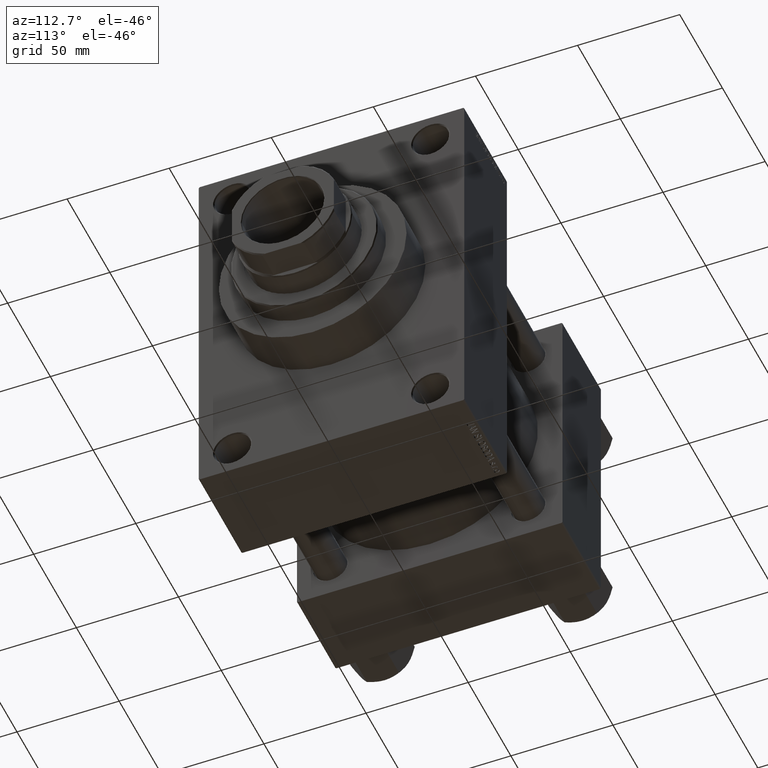
[diagram: clean part render]
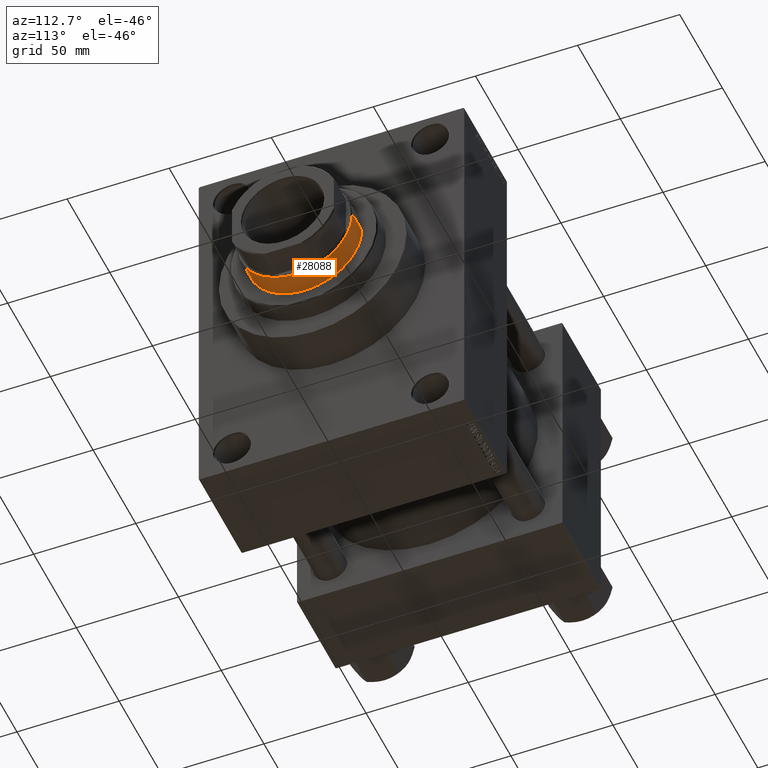
[diagram: same view with one face highlighted and labeled with its STEP entity id]
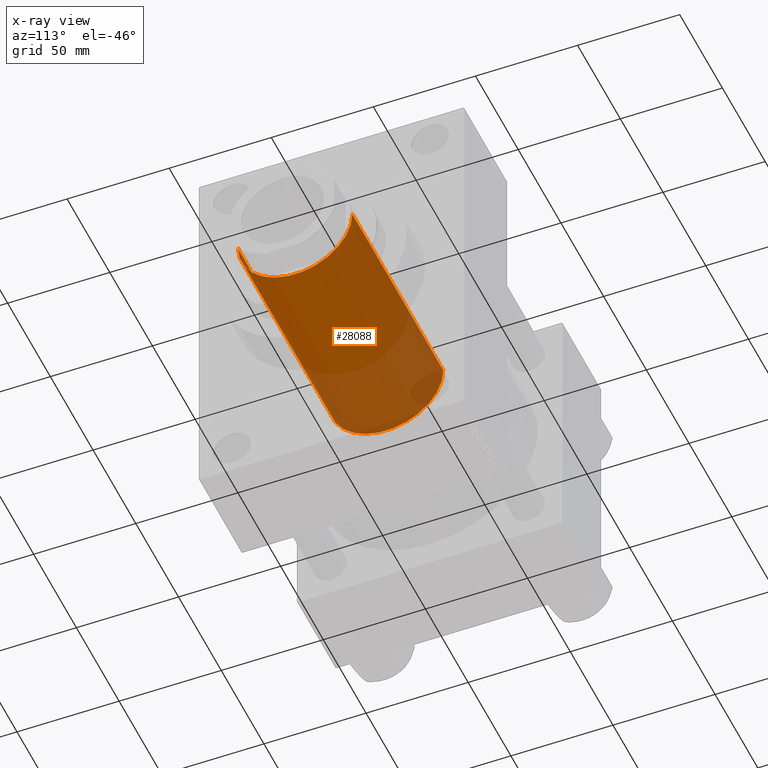
[diagram: x-ray of the same camera — body ghosted, the highlighted face saturated]
A machine part, auxiliary view. The second image highlights one B-rep face of the part: STEP entity #28088.
The next image is the same camera in x-ray: the body ghosted, the highlighted face saturated — about 38% of this face is hidden behind the body in this view.
In plain terms, the highlighted cylindrical surface (partial cylindrical patch) has radius 28 mm, axis along (-1, 0, 0).
Its self-contained STEP definition (entity closure, byte-faithful):
#749 = LINE ( 'NONE', #15472, #11297 ) ;
#6201 = CARTESIAN_POINT ( 'NONE',  ( 28.00000000000000000, 3.429011037612589276E-15, 51.00000000000000000 ) ) ;
#8190 = CIRCLE ( 'NONE', #18186, 28.00000000000000000 ) ;
#8227 = DIRECTION ( 'NONE',  ( -0.000000000000000000, -0.000000000000000000, -1.000000000000000000 ) ) ;
#8310 = LINE ( 'NONE', #18708, #46129 ) ;
#8918 = CARTESIAN_POINT ( 'NONE',  ( 0.000000000000000000, 0.000000000000000000, 158.0000000000000000 ) ) ;
#9163 = DIRECTION ( 'NONE',  ( -0.000000000000000000, -0.000000000000000000, -1.000000000000000000 ) ) ;
#9994 = DIRECTION ( 'NONE',  ( 1.000000000000000000, 0.000000000000000000, 0.000000000000000000 ) ) ;
#11224 = DIRECTION ( 'NONE',  ( -0.000000000000000000, -0.000000000000000000, -1.000000000000000000 ) ) ;
#11297 = VECTOR ( 'NONE', #8227, 1000.000000000000000 ) ;
#12910 = CARTESIAN_POINT ( 'NONE',  ( 28.00000000000000000, 3.429011037612589276E-15, 157.4999999999999716 ) ) ;
#15472 = CARTESIAN_POINT ( 'NONE',  ( 28.00000000000000000, 3.429011037612589276E-15, 158.0000000000000000 ) ) ;
#16139 = VERTEX_POINT ( 'NONE', #6201 ) ;
#16447 = EDGE_CURVE ( 'NONE', #45665, #31552, #8190, .T. ) ;
#17041 = EDGE_CURVE ( 'NONE', #31552, #16139, #749, .T. ) ;
#18186 = AXIS2_PLACEMENT_3D ( 'NONE', #24710, #39200, #9994 ) ;
#18708 = CARTESIAN_POINT ( 'NONE',  ( -28.00000000000000000, 0.000000000000000000, 158.0000000000000000 ) ) ;
#19855 = DIRECTION ( 'NONE',  ( 0.000000000000000000, 0.000000000000000000, 1.000000000000000000 ) ) ;
#22204 = ORIENTED_EDGE ( 'NONE', *, *, #17041, .T. ) ;
#22264 = VERTEX_POINT ( 'NONE', #42040 ) ;
#23095 = AXIS2_PLACEMENT_3D ( 'NONE', #8918, #9163, #23878 ) ;
#23878 = DIRECTION ( 'NONE',  ( -1.000000000000000000, 0.000000000000000000, 0.000000000000000000 ) ) ;
#24710 = CARTESIAN_POINT ( 'NONE',  ( 0.000000000000000000, 0.000000000000000000, 157.4999999999999716 ) ) ;
#24720 = EDGE_CURVE ( 'NONE', #45665, #22264, #8310, .T. ) ;
#25440 = CIRCLE ( 'NONE', #36989, 28.00000000000000000 ) ;
#27153 = ORIENTED_EDGE ( 'NONE', *, *, #29803, .T. ) ;
#28088 = ADVANCED_FACE ( 'NONE', ( #41746 ), #34251, .T. ) ;
#29803 = EDGE_CURVE ( 'NONE', #16139, #22264, #25440, .T. ) ;
#31552 = VERTEX_POINT ( 'NONE', #12910 ) ;
#34251 = CYLINDRICAL_SURFACE ( 'NONE', #23095, 28.00000000000000000 ) ;
#36989 = AXIS2_PLACEMENT_3D ( 'NONE', #37239, #19855, #45198 ) ;
#37239 = CARTESIAN_POINT ( 'NONE',  ( 0.000000000000000000, 0.000000000000000000, 51.00000000000000000 ) ) ;
#38886 = ORIENTED_EDGE ( 'NONE', *, *, #24720, .F. ) ;
#39200 = DIRECTION ( 'NONE',  ( 0.000000000000000000, 0.000000000000000000, -1.000000000000000000 ) ) ;
#41746 = FACE_OUTER_BOUND ( 'NONE', #43859, .T. ) ;
#42040 = CARTESIAN_POINT ( 'NONE',  ( -28.00000000000000000, 0.000000000000000000, 51.00000000000000000 ) ) ;
#43859 = EDGE_LOOP ( 'NONE', ( #45878, #22204, #27153, #38886 ) ) ;
#45198 = DIRECTION ( 'NONE',  ( 1.000000000000000000, 0.000000000000000000, 0.000000000000000000 ) ) ;
#45202 = CARTESIAN_POINT ( 'NONE',  ( -28.00000000000000000, 0.000000000000000000, 157.4999999999999716 ) ) ;
#45665 = VERTEX_POINT ( 'NONE', #45202 ) ;
#45878 = ORIENTED_EDGE ( 'NONE', *, *, #16447, .T. ) ;
#46129 = VECTOR ( 'NONE', #11224, 1000.000000000000000 ) ;